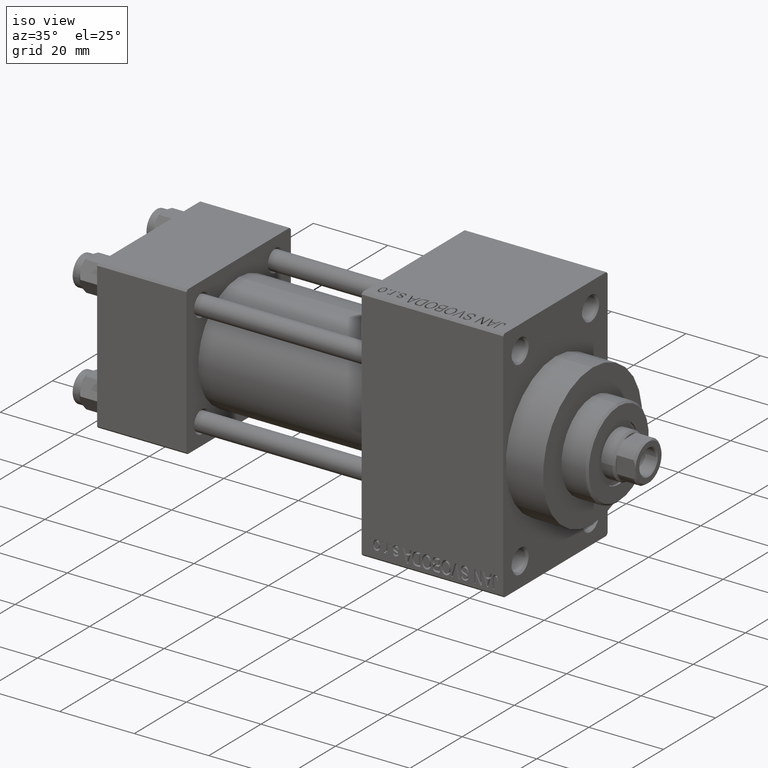
[diagram: clean part render]
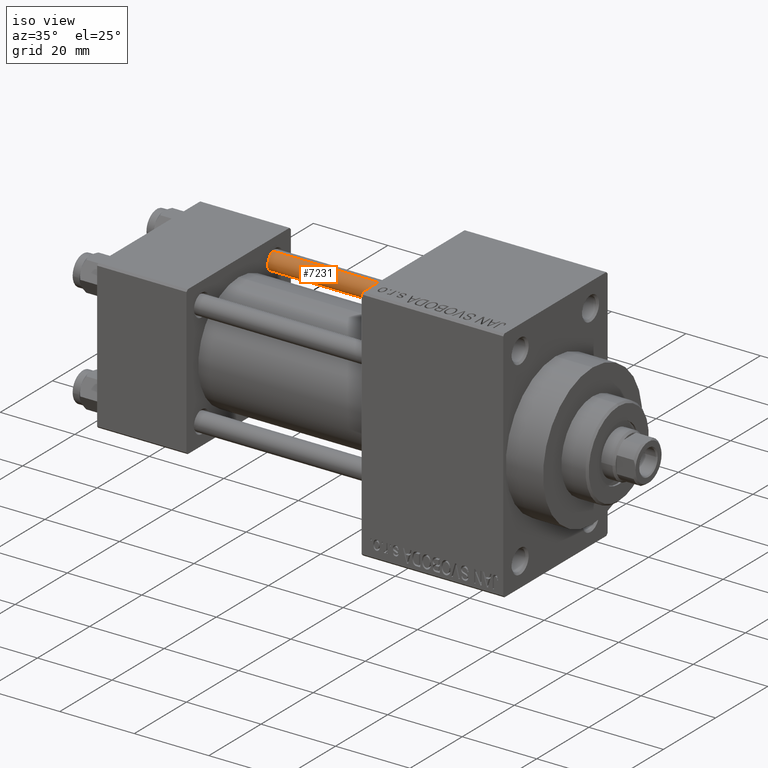
[diagram: same view with one face highlighted and labeled with its STEP entity id]
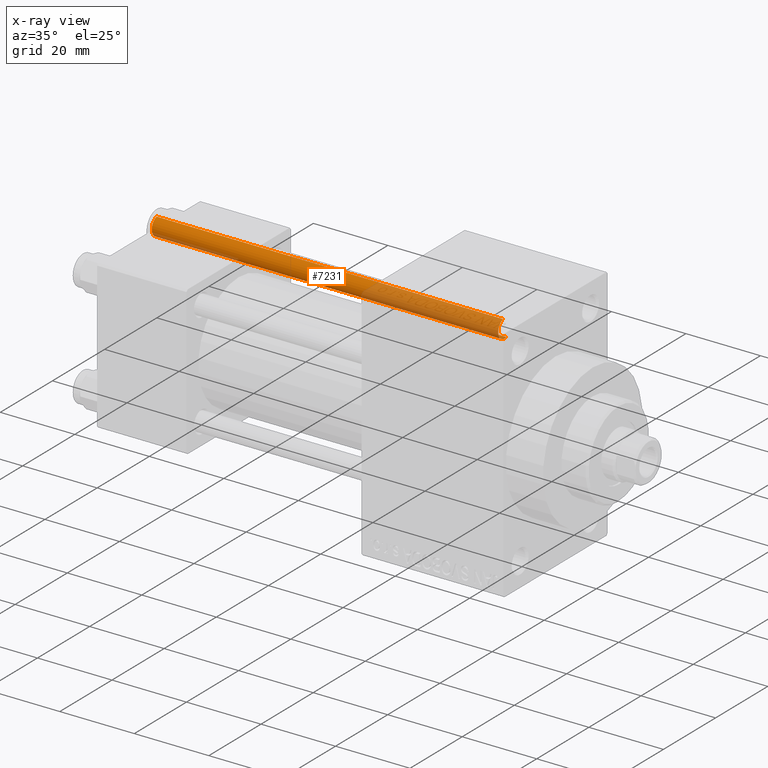
[diagram: x-ray of the same camera — body ghosted, the highlighted face saturated]
A machine part, iso view. The second image highlights one B-rep face of the part: STEP entity #7231.
The next image is the same camera in x-ray: the body ghosted, the highlighted face saturated — about 42% of this face is hidden behind the body in this view.
In plain terms, the highlighted cylindrical surface (edge-blend (fillet) strip) has radius 2.5 mm, axis along (-1, -0, 0).
Its self-contained STEP definition (entity closure, byte-faithful):
#2433 = CARTESIAN_POINT ( 'NONE',  ( 2.500000000000000000, 3.061616997868383141E-16, 93.50000000000001421 ) ) ;
#4178 = ORIENTED_EDGE ( 'NONE', *, *, #36421, .T. ) ;
#4945 = CARTESIAN_POINT ( 'NONE',  ( -2.500000000000000000, 0.000000000000000000, 94.00000000000000000 ) ) ;
#5501 = EDGE_LOOP ( 'NONE', ( #19191, #19571, #4178, #46881 ) ) ;
#5672 = CARTESIAN_POINT ( 'NONE',  ( -2.500000000000000000, 0.000000000000000000, 93.50000000000001421 ) ) ;
#6122 = DIRECTION ( 'NONE',  ( 1.000000000000000000, 0.000000000000000000, 0.000000000000000000 ) ) ;
#6596 = CARTESIAN_POINT ( 'NONE',  ( 0.000000000000000000, 0.000000000000000000, 93.50000000000001421 ) ) ;
#6803 = DIRECTION ( 'NONE',  ( -0.000000000000000000, -0.000000000000000000, -1.000000000000000000 ) ) ;
#7231 = ADVANCED_FACE ( 'NONE', ( #17759 ), #32744, .T. ) ;
#9719 = CARTESIAN_POINT ( 'NONE',  ( 2.500000000000000000, 3.061616997868383141E-16, 0.5000000000000004441 ) ) ;
#11636 = EDGE_CURVE ( 'NONE', #37110, #43046, #36962, .T. ) ;
#13719 = DIRECTION ( 'NONE',  ( 1.000000000000000000, 0.000000000000000000, 0.000000000000000000 ) ) ;
#15228 = VERTEX_POINT ( 'NONE', #26004 ) ;
#17661 = VECTOR ( 'NONE', #33990, 1000.000000000000000 ) ;
#17759 = FACE_OUTER_BOUND ( 'NONE', #5501, .T. ) ;
#19191 = ORIENTED_EDGE ( 'NONE', *, *, #31910, .F. ) ;
#19571 = ORIENTED_EDGE ( 'NONE', *, *, #11636, .T. ) ;
#20023 = CIRCLE ( 'NONE', #42804, 2.500000000000000000 ) ;
#20089 = LINE ( 'NONE', #45330, #38166 ) ;
#21568 = DIRECTION ( 'NONE',  ( -1.000000000000000000, 0.000000000000000000, 0.000000000000000000 ) ) ;
#21589 = DIRECTION ( 'NONE',  ( 0.000000000000000000, 0.000000000000000000, -1.000000000000000000 ) ) ;
#22434 = AXIS2_PLACEMENT_3D ( 'NONE', #39177, #6803, #21568 ) ;
#24699 = CARTESIAN_POINT ( 'NONE',  ( 0.000000000000000000, 0.000000000000000000, 0.5000000000000004441 ) ) ;
#25123 = VERTEX_POINT ( 'NONE', #9719 ) ;
#26004 = CARTESIAN_POINT ( 'NONE',  ( -2.500000000000000000, 0.000000000000000000, 0.5000000000000004441 ) ) ;
#26333 = AXIS2_PLACEMENT_3D ( 'NONE', #6596, #21589, #13719 ) ;
#27232 = DIRECTION ( 'NONE',  ( -0.000000000000000000, -0.000000000000000000, -1.000000000000000000 ) ) ;
#31910 = EDGE_CURVE ( 'NONE', #37110, #25123, #20089, .T. ) ;
#32744 = CYLINDRICAL_SURFACE ( 'NONE', #22434, 2.500000000000000000 ) ;
#33823 = EDGE_CURVE ( 'NONE', #15228, #25123, #20023, .T. ) ;
#33990 = DIRECTION ( 'NONE',  ( -0.000000000000000000, -0.000000000000000000, -1.000000000000000000 ) ) ;
#36421 = EDGE_CURVE ( 'NONE', #43046, #15228, #37552, .T. ) ;
#36962 = CIRCLE ( 'NONE', #26333, 2.500000000000000000 ) ;
#37110 = VERTEX_POINT ( 'NONE', #2433 ) ;
#37552 = LINE ( 'NONE', #4945, #17661 ) ;
#38166 = VECTOR ( 'NONE', #27232, 1000.000000000000000 ) ;
#39177 = CARTESIAN_POINT ( 'NONE',  ( 0.000000000000000000, 0.000000000000000000, 94.00000000000000000 ) ) ;
#42804 = AXIS2_PLACEMENT_3D ( 'NONE', #24699, #46127, #6122 ) ;
#43046 = VERTEX_POINT ( 'NONE', #5672 ) ;
#45330 = CARTESIAN_POINT ( 'NONE',  ( 2.500000000000000000, 3.061616997868383141E-16, 94.00000000000000000 ) ) ;
#46127 = DIRECTION ( 'NONE',  ( -0.000000000000000000, -0.000000000000000000, 1.000000000000000000 ) ) ;
#46881 = ORIENTED_EDGE ( 'NONE', *, *, #33823, .T. ) ;